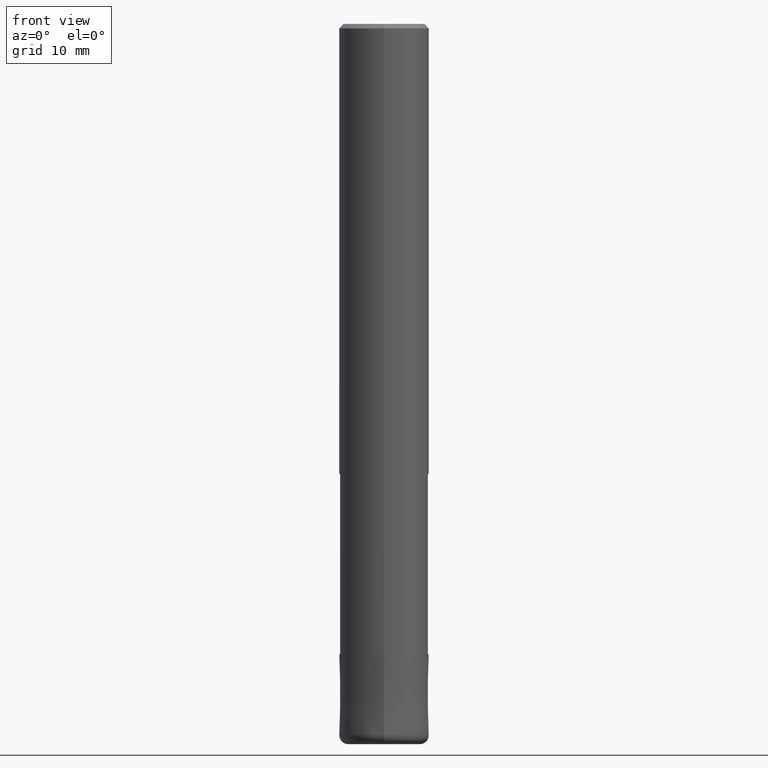
[diagram: clean part render]
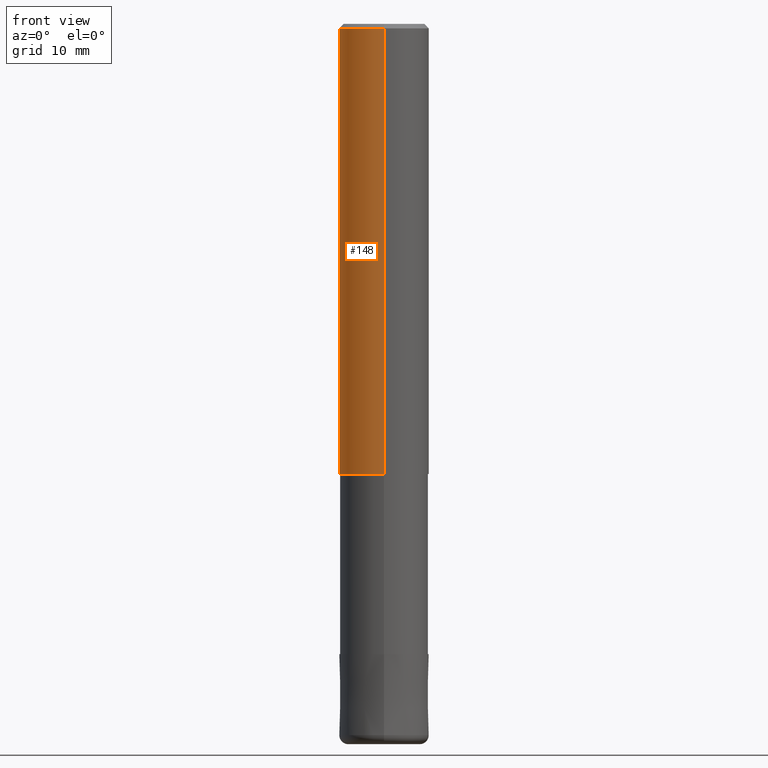
[diagram: same view with one face highlighted and labeled with its STEP entity id]
A machine part, front view. The second image highlights one B-rep face of the part: STEP entity #148.
In plain terms, the highlighted cylindrical surface (partial cylindrical patch) has radius 5 mm, axis along (-0, -0, 1).
Its self-contained STEP definition (entity closure, byte-faithful):
#102=EDGE_CURVE('',#158,#208,#239,.T.);
#124=EDGE_CURVE('',#198,#208,#264,.T.);
#148=ADVANCED_FACE('',(#290),#291,.T.);
#158=VERTEX_POINT('',#305);
#164=VERTEX_POINT('',#312);
#168=EDGE_CURVE('',#198,#164,#317,.T.);
#198=VERTEX_POINT('',#350);
#204=EDGE_CURVE('',#164,#158,#357,.T.);
#208=VERTEX_POINT('',#361);
#239=LINE('',#387,#388);
#264=CIRCLE('',#419,5.0);
#290=FACE_OUTER_BOUND('',#454,.T.);
#291=CYLINDRICAL_SURFACE('',#455,5.0);
#305=CARTESIAN_POINT('',(0.0,5.0,-0.5));
#312=CARTESIAN_POINT('',(6.12303176911189E-016,-5.0,-0.5));
#317=LINE('',#485,#486);
#350=CARTESIAN_POINT('',(6.12303176911189E-016,-5.0,-50.0));
#357=CIRCLE('',#532,5.0);
#361=CARTESIAN_POINT('',(0.0,5.0,-50.0));
#387=CARTESIAN_POINT('',(-6.12303176911189E-016,5.0,-25.25));
#388=VECTOR('',#549,1.0);
#419=AXIS2_PLACEMENT_3D('',#582,#583,#584);
#454=EDGE_LOOP('',(#619,#620,#621,#622));
#455=AXIS2_PLACEMENT_3D('',#623,#624,#625);
#485=CARTESIAN_POINT('',(6.12303176911189E-016,-5.0,-25.25));
#486=VECTOR('',#668,1.0);
#532=AXIS2_PLACEMENT_3D('',#712,#713,#714);
#549=DIRECTION('',(0.0,0.0,-1.0));
#582=CARTESIAN_POINT('',(0.0,0.0,-50.0));
#583=DIRECTION('',(0.0,0.0,-1.0));
#584=DIRECTION('',(0.0,1.0,0.0));
#619=ORIENTED_EDGE('',*,*,#102,.T.);
#620=ORIENTED_EDGE('',*,*,#124,.F.);
#621=ORIENTED_EDGE('',*,*,#168,.T.);
#622=ORIENTED_EDGE('',*,*,#204,.T.);
#623=CARTESIAN_POINT('',(0.0,0.0,-25.25));
#624=DIRECTION('',(-0.0,-0.0,1.0));
#625=DIRECTION('',(0.0,1.0,0.0));
#668=DIRECTION('',(-0.0,-0.0,1.0));
#712=CARTESIAN_POINT('',(0.0,0.0,-0.5));
#713=DIRECTION('',(0.0,0.0,-1.0));
#714=DIRECTION('',(0.0,1.0,0.0));